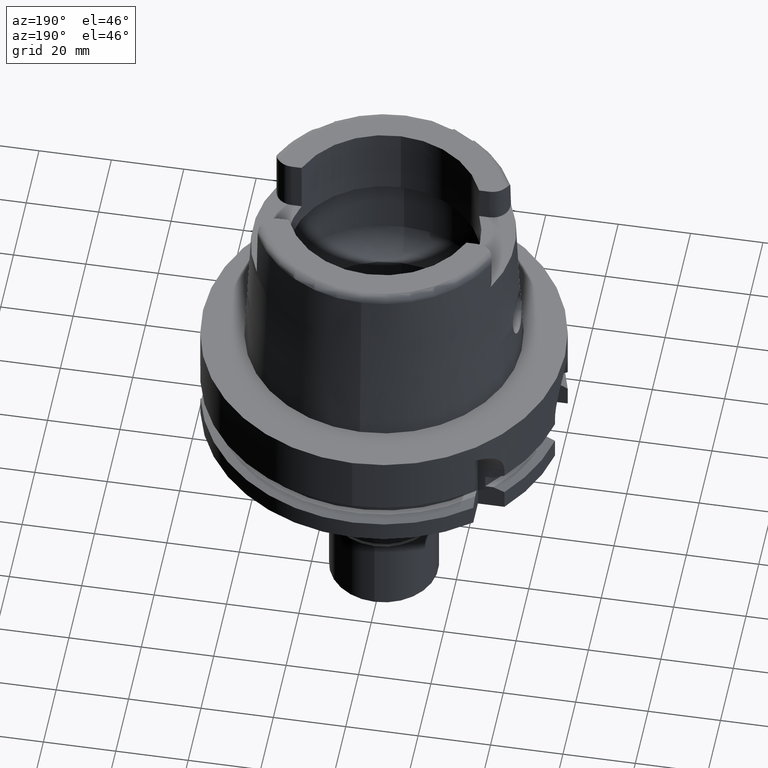
[diagram: clean part render]
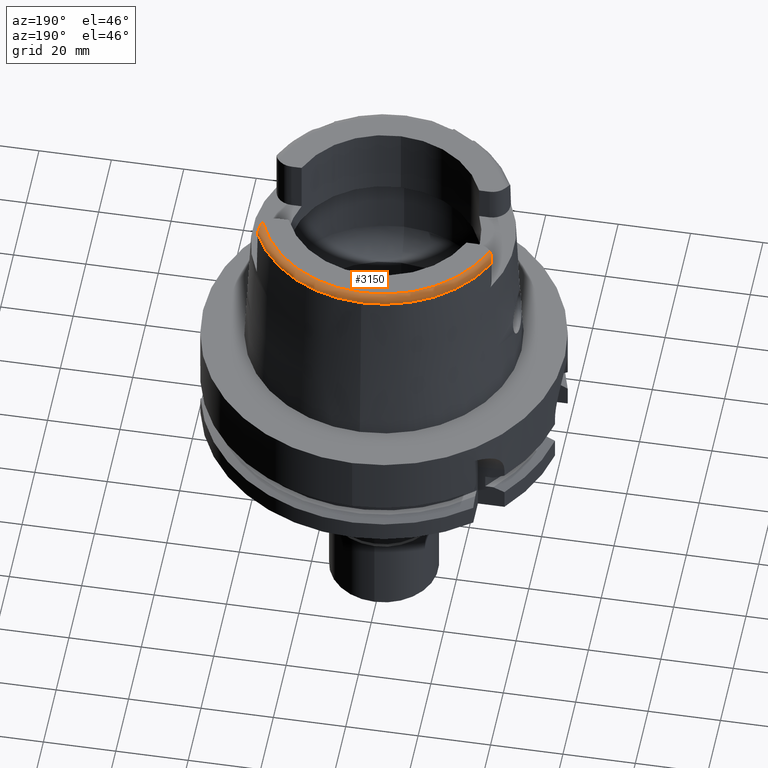
[diagram: same view with one face highlighted and labeled with its STEP entity id]
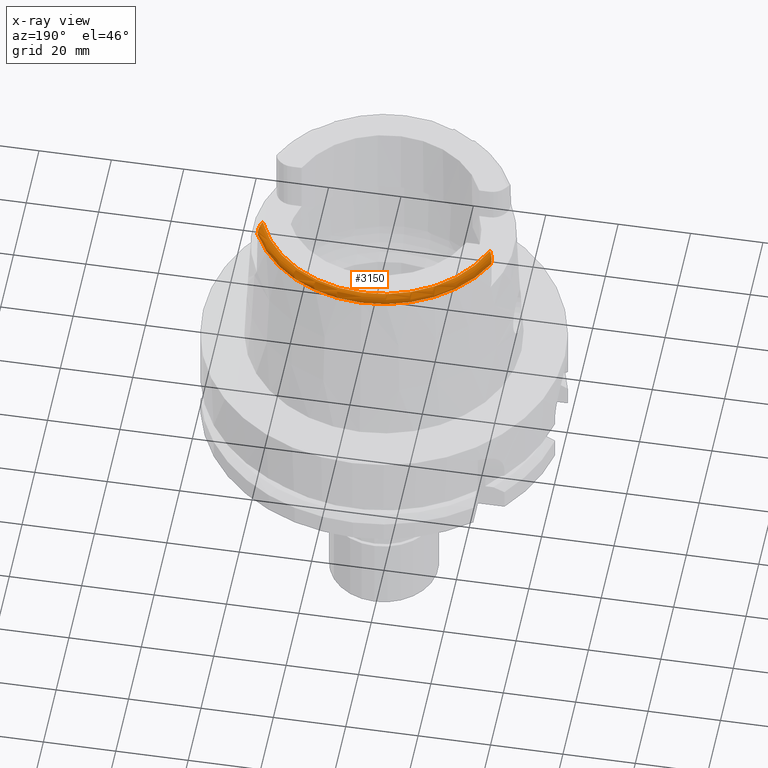
[diagram: x-ray of the same camera — body ghosted, the highlighted face saturated]
A machine part, auxiliary view. The second image highlights one B-rep face of the part: STEP entity #3150.
The next image is the same camera in x-ray: the body ghosted, the highlighted face saturated — about 0% of this face is hidden behind the body in this view.
In plain terms, the highlighted toroidal blend (fillet) surface has major radius 33.5974 mm and minor (blend) radius 2 mm.
Its self-contained STEP definition (entity closure, byte-faithful):
#109 = VERTEX_POINT ( 'NONE', #4951 ) ;
#134 = CIRCLE ( 'NONE', #1318, 35.59494289391000166 ) ;
#173 = TOROIDAL_SURFACE ( 'NONE', #1354, 33.59743838135999994, 2.000000000000000000 ) ;
#194 = DIRECTION ( 'NONE',  ( 0.0000000000000000000, 0.0000000000000000000, -1.000000000000000000 ) ) ;
#204 = CARTESIAN_POINT ( 'NONE',  ( -32.25000000000000000, 14.89000000000000057, 48.54599893821999501 ) ) ;
#206 = VERTEX_POINT ( 'NONE', #1635 ) ;
#268 = CARTESIAN_POINT ( 'NONE',  ( -32.24345515405202889, 14.63093596464325685, 48.85154202513595578 ) ) ;
#279 = EDGE_CURVE ( 'NONE', #206, #2548, #1948, .T. ) ;
#319 = CARTESIAN_POINT ( 'NONE',  ( 32.24293413593705537, 14.62412881894635674, 48.85855287484474729 ) ) ;
#321 = CARTESIAN_POINT ( 'NONE',  ( -31.83859219939333940, 12.92880319935421340, 49.84753392474389244 ) ) ;
#326 = DIRECTION ( 'NONE',  ( 0.0000000000000000000, 0.0000000000000000000, 1.000000000000000000 ) ) ;
#357 = CARTESIAN_POINT ( 'NONE',  ( -32.09374446187712948, 13.66109102455235735, 49.53647593555832884 ) ) ;
#409 = CARTESIAN_POINT ( 'NONE',  ( -31.86193842343815064, 12.98231215238988590, 49.83003727610857680 ) ) ;
#416 = CARTESIAN_POINT ( 'NONE',  ( -32.25000000000000000, 14.98831011546804959, 48.40078052517080920 ) ) ;
#449 = CIRCLE ( 'NONE', #1254, 33.59743838135999994 ) ;
#495 = CARTESIAN_POINT ( 'NONE',  ( 0.0000000000000000000, 0.0000000000000000000, 48.09987853799000135 ) ) ;
#608 = CARTESIAN_POINT ( 'NONE',  ( -32.19213118038643984, 14.14069056666593482, 49.24717075758574225 ) ) ;
#665 = CARTESIAN_POINT ( 'NONE',  ( -32.13581824865448766, 13.84020591425538704, 49.43616925493729042 ) ) ;
#675 = CARTESIAN_POINT ( 'NONE',  ( 31.93162274739649931, 13.15438121909779667, 49.76799491051396984 ) ) ;
#687 = CARTESIAN_POINT ( 'NONE',  ( 32.24918042244836158, 14.77409206613498682, 48.70189445634413516 ) ) ;
#704 = CARTESIAN_POINT ( 'NONE',  ( 31.35385269249000473, 12.07161079256999869, 50.00000000000000000 ) ) ;
#745 = CARTESIAN_POINT ( 'NONE',  ( 32.23204907122966745, 14.47165625699129521, 48.99610947155833429 ) ) ;
#831 = CARTESIAN_POINT ( 'NONE',  ( -32.07036182152059212, 13.57631490199655921, 49.57965165214195480 ) ) ;
#837 = CARTESIAN_POINT ( 'NONE',  ( 0.0000000000000000000, 0.0000000000000000000, 48.00000000000000000 ) ) ;
#1023 = CARTESIAN_POINT ( 'NONE',  ( -32.20676026511764434, 14.24058843225397020, 49.17722829685424557 ) ) ;
#1036 = CARTESIAN_POINT ( 'NONE',  ( 32.14188688412737349, 13.86760309297744165, 49.42042527516986894 ) ) ;
#1052 = CARTESIAN_POINT ( 'NONE',  ( -32.19407442168708400, 14.15329644968886669, 49.23853644310212729 ) ) ;
#1133 = CARTESIAN_POINT ( 'NONE',  ( -32.02714382990561859, 13.43205475884258071, 49.64877460818868116 ) ) ;
#1254 = AXIS2_PLACEMENT_3D ( 'NONE', #3846, #3056, #2654 ) ;
#1288 = EDGE_CURVE ( 'NONE', #1445, #2693, #3985, .T. ) ;
#1318 = AXIS2_PLACEMENT_3D ( 'NONE', #3258, #194, #4560 ) ;
#1354 = AXIS2_PLACEMENT_3D ( 'NONE', #837, #326, #5095 ) ;
#1397 = B_SPLINE_CURVE_WITH_KNOTS ( 'NONE', 3,
 ( #2841, #4567, #687, #4632, #319, #2051, #3770, #5531, #745, #5088, #1629, #2900, #2476, #3350, #4194, #1036, #4588, #3191, #2804, #5429, #4068, #4531, #1555, #675, #5013, #2315, #2769, #5339, #3583 ),
 .UNSPECIFIED., .F., .F.,
 ( 4, 2, 2, 1, 2, 2, 2, 2, 1, 1, 2, 2, 2, 2, 2, 4 ),
 ( 0.0000000000000000000, 0.1249999999999759637, 0.1874999999999631406, 0.2187499999999569233, 0.2343749999999539813, 0.2499999999999510669, 0.3749999999999303335, 0.4374999999999192868, 0.4687499999999134026, 0.4843749999999112932, 0.4921874999999128475, 0.4999999999999144018, 0.6249999999999393818, 0.6874999999999501510, 0.7499999999999610312, 1.000000000000000000 ),
 .UNSPECIFIED. ) ;
#1445 = VERTEX_POINT ( 'NONE', #204 ) ;
#1456 = CARTESIAN_POINT ( 'NONE',  ( -32.24538941470823517, 14.67086318647566934, 48.81138820972972070 ) ) ;
#1482 = CARTESIAN_POINT ( 'NONE',  ( -32.23214977767798217, 14.47286670544159115, 48.99503751165799059 ) ) ;
#1510 = CARTESIAN_POINT ( 'NONE',  ( -32.15901842582436387, 13.95107797737945887, 49.37004182884464143 ) ) ;
#1555 = CARTESIAN_POINT ( 'NONE',  ( 31.95930003661937846, 13.22897510263665133, 49.73830963972905295 ) ) ;
#1629 = CARTESIAN_POINT ( 'NONE',  ( 32.22072712136967709, 14.34662851038087261, 49.10058382451609305 ) ) ;
#1635 = CARTESIAN_POINT ( 'NONE',  ( 32.24997259589490284, 15.06456613072480089, 48.09965105425600029 ) ) ;
#1640 = CARTESIAN_POINT ( 'NONE',  ( -32.25000136840999687, 15.06443226396999968, 48.09991937551000518 ) ) ;
#1681 = ORIENTED_EDGE ( 'NONE', *, *, #279, .F. ) ;
#1768 = AXIS2_PLACEMENT_3D ( 'NONE', #495, #2250, #2198 ) ;
#1863 = EDGE_CURVE ( 'NONE', #5133, #4748, #449, .T. ) ;
#1912 = CARTESIAN_POINT ( 'NONE',  ( -32.19578810459475449, 14.16454208006628690, 49.23079519820581851 ) ) ;
#1948 = B_SPLINE_CURVE_WITH_KNOTS ( 'NONE', 3,
 ( #2342, #3633, #5363, #4461 ),
 .UNSPECIFIED., .F., .F.,
 ( 4, 4 ),
 ( 0.0000000000000000000, 1.000000000000000000 ),
 .UNSPECIFIED. ) ;
#1999 = CARTESIAN_POINT ( 'NONE',  ( -32.22608280157702865, 14.40553125334817786, 49.05142022168511318 ) ) ;
#2015 = ORIENTED_EDGE ( 'NONE', *, *, #1288, .F. ) ;
#2051 = CARTESIAN_POINT ( 'NONE',  ( 32.23894712895374681, 14.56106611610106860, 48.91745382897386207 ) ) ;
#2085 = CARTESIAN_POINT ( 'NONE',  ( -31.35385269249000473, 12.07161079256999869, 50.00000000000000000 ) ) ;
#2110 = CARTESIAN_POINT ( 'NONE',  ( -31.51375898040528867, 12.29764170909743370, 49.99999999999936762 ) ) ;
#2198 = DIRECTION ( 'NONE',  ( -0.9060276961631030801, 0.4232183996300014628, 0.0000000000000000000 ) ) ;
#2250 = DIRECTION ( 'NONE',  ( 0.0000000000000000000, 0.0000000000000000000, -1.000000000000000000 ) ) ;
#2315 = CARTESIAN_POINT ( 'NONE',  ( 31.84015846033129549, 12.93084568688811231, 49.84759135899733451 ) ) ;
#2336 = CARTESIAN_POINT ( 'NONE',  ( -32.17702237799785081, 14.04627787768770553, 49.31052408290708655 ) ) ;
#2342 = CARTESIAN_POINT ( 'NONE',  ( 32.24997259589490284, 15.06456613072480089, 48.09965105425600029 ) ) ;
#2350 = ORIENTED_EDGE ( 'NONE', *, *, #2736, .T. ) ;
#2389 = CARTESIAN_POINT ( 'NONE',  ( -32.12663798659912828, 13.79945764079307935, 49.45954849130316688 ) ) ;
#2452 = CARTESIAN_POINT ( 'NONE',  ( -32.03766236326278971, 13.46601631139968624, 49.63293130748110116 ) ) ;
#2476 = CARTESIAN_POINT ( 'NONE',  ( 32.18007494944290414, 14.06477645115822384, 49.29883070353029950 ) ) ;
#2508 = CARTESIAN_POINT ( 'NONE',  ( -31.99308464072606029, 13.32751451358121209, 49.69561955662518216 ) ) ;
#2548 = VERTEX_POINT ( 'NONE', #2972 ) ;
#2654 = DIRECTION ( 'NONE',  ( -0.9332215253017949186, 0.3593015233941980191, 0.0000000000000000000 ) ) ;
#2693 = VERTEX_POINT ( 'NONE', #2787 ) ;
#2736 = EDGE_CURVE ( 'NONE', #1445, #5133, #5314, .T. ) ;
#2754 = CARTESIAN_POINT ( 'NONE',  ( -32.19963765075136308, 14.19039925508718092, 49.21281792769459429 ) ) ;
#2769 = CARTESIAN_POINT ( 'NONE',  ( 31.67629360087671841, 12.57278789232595351, 49.95645467399923945 ) ) ;
#2787 = CARTESIAN_POINT ( 'NONE',  ( -32.25000136840999687, 15.06443226396999968, 48.09991937551000518 ) ) ;
#2804 = CARTESIAN_POINT ( 'NONE',  ( 32.12040315738705942, 13.77279962277918912, 49.47446330991719066 ) ) ;
#2818 = CARTESIAN_POINT ( 'NONE',  ( -32.18546223299515674, 14.09791713854534478, 49.27632234476840267 ) ) ;
#2841 = CARTESIAN_POINT ( 'NONE',  ( 32.25000000000000000, 14.89000000000000057, 48.54599893821999501 ) ) ;
#2867 = CARTESIAN_POINT ( 'NONE',  ( -31.99016027197617973, 13.31888667826061123, 49.69936573766659649 ) ) ;
#2900 = CARTESIAN_POINT ( 'NONE',  ( 32.20764756814439522, 14.23790667407853405, 49.18194017604240287 ) ) ;
#2927 = CARTESIAN_POINT ( 'NONE',  ( -32.00499374026588129, 13.36314887055779899, 49.67997890464667421 ) ) ;
#2972 = CARTESIAN_POINT ( 'NONE',  ( 32.25000000000000000, 14.89000000000000057, 48.54599893821999501 ) ) ;
#2991 = CARTESIAN_POINT ( 'NONE',  ( -32.01223330215123752, 13.38540272986891466, 49.67000095582891106 ) ) ;
#2997 = CARTESIAN_POINT ( 'NONE',  ( -32.25000000000000000, 14.89000000000000057, 48.54599893821999501 ) ) ;
#3008 = ORIENTED_EDGE ( 'NONE', *, *, #4719, .F. ) ;
#3056 = DIRECTION ( 'NONE',  ( 0.0000000000000000000, 0.0000000000000000000, -1.000000000000000000 ) ) ;
#3150 = ADVANCED_FACE ( 'NONE', ( #3382 ), #173, .T. ) ;
#3191 = CARTESIAN_POINT ( 'NONE',  ( 32.12411983853375119, 13.78872283169266488, 49.46552618259552503 ) ) ;
#3204 = CARTESIAN_POINT ( 'NONE',  ( -32.23107993474329191, 14.46061913774246044, 49.00541146506390078 ) ) ;
#3239 = CARTESIAN_POINT ( 'NONE',  ( -32.15211867840859838, 13.91638596899111135, 49.39123975355627039 ) ) ;
#3258 = CARTESIAN_POINT ( 'NONE',  ( 0.0000000000000000000, 0.0000000000000000000, 48.09987853799000135 ) ) ;
#3267 = CARTESIAN_POINT ( 'NONE',  ( -32.23936916217911630, 14.56612707659388306, 48.91260521615271273 ) ) ;
#3295 = CARTESIAN_POINT ( 'NONE',  ( -32.23702996050592162, 14.53249329640075693, 48.94334405030787138 ) ) ;
#3350 = CARTESIAN_POINT ( 'NONE',  ( 32.16955595454241035, 14.00539518437683029, 49.33693687939266681 ) ) ;
#3382 = FACE_OUTER_BOUND ( 'NONE', #4286, .T. ) ;
#3387 = EDGE_CURVE ( 'NONE', #2693, #109, #4391, .T. ) ;
#3583 = CARTESIAN_POINT ( 'NONE',  ( 31.35385269249000473, 12.07161079256999869, 50.00000000000000000 ) ) ;
#3633 = CARTESIAN_POINT ( 'NONE',  ( 32.25000000000000000, 15.04644977090994828, 48.25213027921573428 ) ) ;
#3651 = CARTESIAN_POINT ( 'NONE',  ( -32.24999999999867839, 14.84161656020693698, 48.61746835222930230 ) ) ;
#3685 = CARTESIAN_POINT ( 'NONE',  ( -32.25000000000000000, 14.89000000000000057, 48.54599893821999501 ) ) ;
#3715 = CARTESIAN_POINT ( 'NONE',  ( -32.19291753659510391, 14.14576285931832089, 49.24370515619165900 ) ) ;
#3741 = CARTESIAN_POINT ( 'NONE',  ( -31.88507885862932412, 13.03804182964328717, 49.81051693820995041 ) ) ;
#3770 = CARTESIAN_POINT ( 'NONE',  ( 32.23668744075745707, 14.52856323061100596, 48.94692631278006445 ) ) ;
#3846 = CARTESIAN_POINT ( 'NONE',  ( 0.0000000000000000000, 0.0000000000000000000, 50.00000000000000000 ) ) ;
#3869 = CARTESIAN_POINT ( 'NONE',  ( -31.35385269249000473, 12.07161079256999869, 50.00000000000000000 ) ) ;
#3892 = ORIENTED_EDGE ( 'NONE', *, *, #4190, .F. ) ;
#3985 = B_SPLINE_CURVE_WITH_KNOTS ( 'NONE', 3,
 ( #2997, #416, #4639, #1640 ),
 .UNSPECIFIED., .F., .F.,
 ( 4, 4 ),
 ( 0.0000000000000000000, 1.000000000000000000 ),
 .UNSPECIFIED. ) ;
#4068 = CARTESIAN_POINT ( 'NONE',  ( 32.08036776106682453, 13.60501377163349446, 49.56754789367567327 ) ) ;
#4108 = CARTESIAN_POINT ( 'NONE',  ( -32.12220082927638742, 13.78024428566565796, 49.47041835821521261 ) ) ;
#4141 = CARTESIAN_POINT ( 'NONE',  ( -32.24950220206704898, 14.78101815143436859, 48.69319920798140799 ) ) ;
#4170 = CARTESIAN_POINT ( 'NONE',  ( -31.99697856469669333, 13.33907653698634732, 49.69057496673416807 ) ) ;
#4190 = EDGE_CURVE ( 'NONE', #109, #206, #134, .T. ) ;
#4194 = CARTESIAN_POINT ( 'NONE',  ( 32.15149110050288783, 13.91393206385854420, 49.39281014323586305 ) ) ;
#4257 = CARTESIAN_POINT ( 'NONE',  ( -31.82299876881670286, 12.89362835908784000, 49.85876611869785791 ) ) ;
#4286 = EDGE_LOOP ( 'NONE', ( #4481, #3008, #1681, #3892, #5565, #2015, #2350 ) ) ;
#4391 = CIRCLE ( 'NONE', #1768, 35.59494289391000166 ) ;
#4461 = CARTESIAN_POINT ( 'NONE',  ( 32.25000000000000000, 14.89000000000000057, 48.54599893821999501 ) ) ;
#4481 = ORIENTED_EDGE ( 'NONE', *, *, #1863, .T. ) ;
#4531 = CARTESIAN_POINT ( 'NONE',  ( 32.03656068563162762, 13.45378082786113794, 49.64180869666471807 ) ) ;
#4560 = DIRECTION ( 'NONE',  ( 0.0000000000000000000, 1.000000000000000000, 0.0000000000000000000 ) ) ;
#4567 = CARTESIAN_POINT ( 'NONE',  ( 32.25000000000000711, 14.83731030007948704, 48.62382932799341262 ) ) ;
#4588 = CARTESIAN_POINT ( 'NONE',  ( 32.12961504071618890, 13.81253684209819710, 49.45208030411458111 ) ) ;
#4607 = CARTESIAN_POINT ( 'NONE',  ( -31.67134395309940942, 12.56189192712607472, 49.95970550109304753 ) ) ;
#4632 = CARTESIAN_POINT ( 'NONE',  ( 32.24488386454806488, 14.66357922323020091, 48.81934425673635047 ) ) ;
#4639 = CARTESIAN_POINT ( 'NONE',  ( -32.25000000000000000, 15.04645420345804929, 48.25208733760080548 ) ) ;
#4719 = EDGE_CURVE ( 'NONE', #2548, #4748, #1397, .T. ) ;
#4723 = CARTESIAN_POINT ( 'NONE',  ( -31.99144079090810067, 13.32266112067542707, 49.69772803264336858 ) ) ;
#4748 = VERTEX_POINT ( 'NONE', #704 ) ;
#4914 = CARTESIAN_POINT ( 'NONE',  ( -32.23044844726817360, 14.45355081743809222, 49.01134856073710466 ) ) ;
#4943 = CARTESIAN_POINT ( 'NONE',  ( -32.21194484648242451, 14.28101187605875033, 49.14742330649129798 ) ) ;
#4951 = CARTESIAN_POINT ( 'NONE',  ( 0.0000000000000000000, 35.59494289391000166, 48.09987853799000135 ) ) ;
#4976 = CARTESIAN_POINT ( 'NONE',  ( -32.14010198501822657, 13.85981727813261344, 49.42472628116013311 ) ) ;
#5013 = CARTESIAN_POINT ( 'NONE',  ( 31.87240379986438299, 13.00608528187914636, 49.82240203161063619 ) ) ;
#5028 = CARTESIAN_POINT ( 'NONE',  ( -32.23370826266567946, 14.49108190592366618, 48.97949263281671506 ) ) ;
#5088 = CARTESIAN_POINT ( 'NONE',  ( 32.23111636967283999, 14.46091931168118450, 49.00519992919785750 ) ) ;
#5095 = DIRECTION ( 'NONE',  ( -0.0004184165975219878483, -0.9999999124637716230, 0.0000000000000000000 ) ) ;
#5133 = VERTEX_POINT ( 'NONE', #3869 ) ;
#5151 = CARTESIAN_POINT ( 'NONE',  ( -31.99035050766609700, 13.31944815561521622, 49.69912188566472366 ) ) ;
#5314 = B_SPLINE_CURVE_WITH_KNOTS ( 'NONE', 3,
 ( #3685, #3651, #4141, #1456, #268, #3267, #3295, #5028, #1482, #3204, #4914, #1999, #5411, #4943, #1023, #2754, #1912, #1052, #3715, #608, #2818, #2336, #1510, #3239, #4976, #665, #2389, #4108, #357, #831, #2452, #1133, #2991, #2927, #4170, #2508, #4723, #5151, #2867, #5586, #5617, #3741, #409, #321, #4257, #5501, #4607, #2110, #2085 ),
 .UNSPECIFIED., .F., .F.,
 ( 4, 2, 2, 1, 1, 2, 2, 2, 1, 1, 1, 2, 2, 2, 2, 2, 2, 2, 2, 1, 1, 1, 2, 2, 2, 1, 2, 2, 4 ),
 ( 0.0000000000000000000, 0.1250000000000212053, 0.1875000000000324740, 0.2187500000000386080, 0.2343750000000433542, 0.2421875000000443257, 0.2500000000000453526, 0.3125000000000454081, 0.3437500000000437428, 0.3593750000000435763, 0.3671875000000434652, 0.3710937500000419664, 0.3750000000000404676, 0.4375000000000209277, 0.4687500000000096589, 0.4843750000000047740, 0.4999999999999998890, 0.5624999999999772404, 0.5937499999999660272, 0.6093749999999600320, 0.6171874999999583666, 0.6210937499999572564, 0.6230468749999567013, 0.6249999999999561462, 0.6874999999999606981, 0.7187499999999626965, 0.7343749999999646949, 0.7499999999999666933, 1.000000000000000000 ),
 .UNSPECIFIED. ) ;
#5339 = CARTESIAN_POINT ( 'NONE',  ( 31.52236313705308035, 12.30980386630318080, 50.00000000000000711 ) ) ;
#5363 = CARTESIAN_POINT ( 'NONE',  ( 32.25000000000000000, 14.98827093190927862, 48.40083840501569057 ) ) ;
#5411 = CARTESIAN_POINT ( 'NONE',  ( -32.22126535312181517, 14.35845037154463100, 49.08892682526059303 ) ) ;
#5429 = CARTESIAN_POINT ( 'NONE',  ( 32.11887115975915918, 13.76629281348670375, 49.47809852199447533 ) ) ;
#5501 = CARTESIAN_POINT ( 'NONE',  ( -31.81587121032444188, 12.87778426020491729, 49.86371196699322184 ) ) ;
#5531 = CARTESIAN_POINT ( 'NONE',  ( 32.23396963616178823, 14.49461153676933733, 48.97643180669869167 ) ) ;
#5565 = ORIENTED_EDGE ( 'NONE', *, *, #3387, .F. ) ;
#5586 = CARTESIAN_POINT ( 'NONE',  ( -31.96073781711410078, 13.23250805484460813, 49.73673325161620085 ) ) ;
#5617 = CARTESIAN_POINT ( 'NONE',  ( -31.93086485053066426, 13.15239988499240908, 49.76857206132951461 ) ) ;